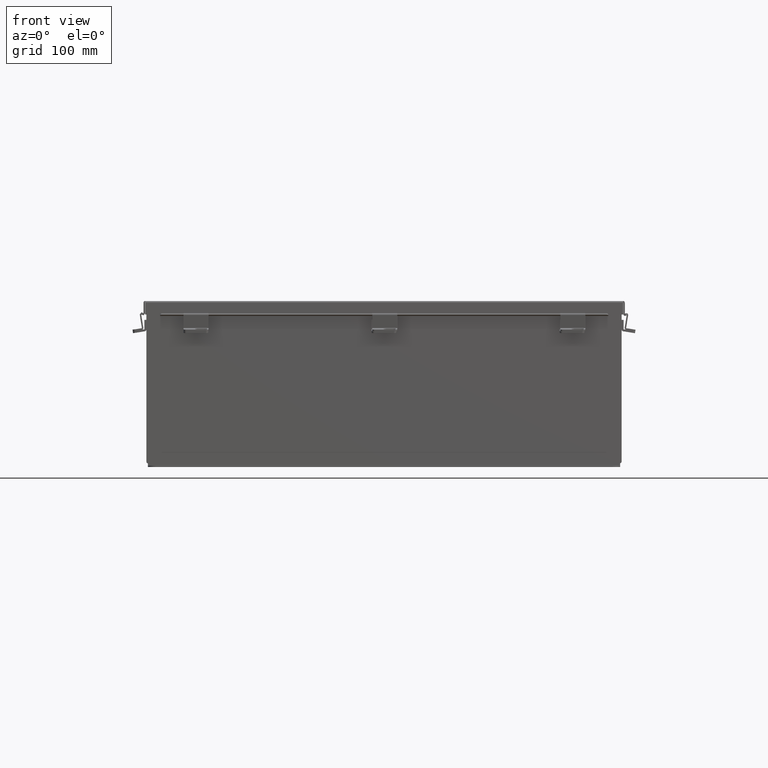
[diagram: clean part render]
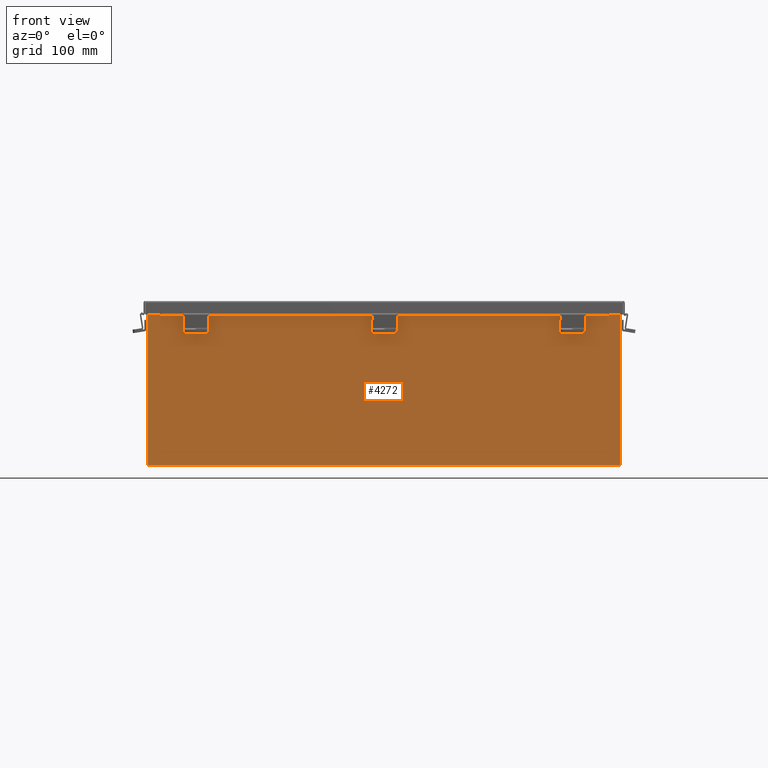
[diagram: same view with one face highlighted and labeled with its STEP entity id]
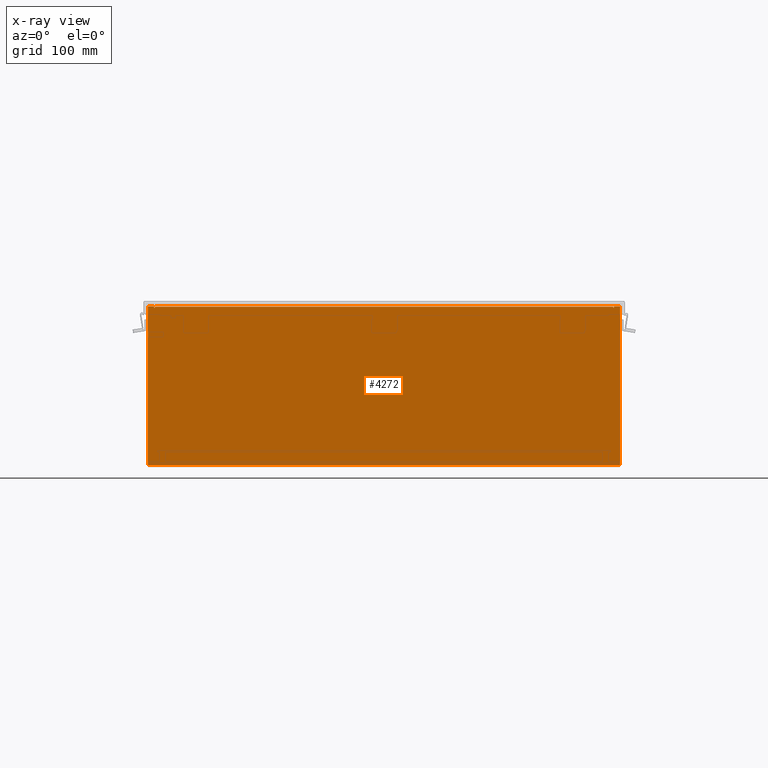
[diagram: x-ray of the same camera — body ghosted, the highlighted face saturated]
A machine part, front view. The second image highlights one B-rep face of the part: STEP entity #4272.
The next image is the same camera in x-ray: the body ghosted, the highlighted face saturated — about 0% of this face is hidden behind the body in this view.
In plain terms, the highlighted planar face has unit normal (-0, 1, -0).
Its self-contained STEP definition (entity closure, byte-faithful):
#26 = VERTEX_POINT ( 'NONE', #7369 ) ;
#90 = CARTESIAN_POINT ( 'NONE',  ( -11.92530000000001800, -1.748382715945128500E-014, 3.925299999999999100 ) ) ;
#274 = CARTESIAN_POINT ( 'NONE',  ( 11.92529999999998400, 0.0000000000000000000, 3.925300000000000500 ) ) ;
#307 = LINE ( 'NONE', #8028, #426 ) ;
#426 = VECTOR ( 'NONE', #4502, 39.37007874015748100 ) ;
#551 = CARTESIAN_POINT ( 'NONE',  ( -11.92530000000001800, -2.185478394931410600E-015, -4.099299999999995100 ) ) ;
#627 = VERTEX_POINT ( 'NONE', #3341 ) ;
#641 = CARTESIAN_POINT ( 'NONE',  ( 11.60097499999998000, 0.0000000000000000000, 3.874949999999997900 ) ) ;
#778 = VECTOR ( 'NONE', #2749, 39.37007874015748100 ) ;
#916 = EDGE_CURVE ( 'NONE', #6836, #2349, #9450, .T. ) ;
#1010 = AXIS2_PLACEMENT_3D ( 'NONE', #2888, #9377, #4308 ) ;
#1170 = EDGE_CURVE ( 'NONE', #2349, #3665, #6658, .T. ) ;
#1233 = ORIENTED_EDGE ( 'NONE', *, *, #8767, .F. ) ;
#1276 = AXIS2_PLACEMENT_3D ( 'NONE', #641, #8004, #3445 ) ;
#1324 = LINE ( 'NONE', #5909, #9157 ) ;
#1566 = CARTESIAN_POINT ( 'NONE',  ( -11.61965000000002000, -1.748382715945128500E-014, 3.925300000000000500 ) ) ;
#1594 = VECTOR ( 'NONE', #1884, 39.37007874015748100 ) ;
#1616 = CARTESIAN_POINT ( 'NONE',  ( -11.92530000000001800, -1.748382715945128500E-014, 3.925299999999999100 ) ) ;
#1803 = CARTESIAN_POINT ( 'NONE',  ( 11.92529999999998400, 1.748382715945128500E-014, -4.099299999999999500 ) ) ;
#1814 = ORIENTED_EDGE ( 'NONE', *, *, #9809, .T. ) ;
#1884 = DIRECTION ( 'NONE',  ( 1.000000000000000000, 8.208677865577687000E-017, -0.0000000000000000000 ) ) ;
#1937 = ORIENTED_EDGE ( 'NONE', *, *, #8825, .T. ) ;
#2321 = ORIENTED_EDGE ( 'NONE', *, *, #4082, .F. ) ;
#2349 = VERTEX_POINT ( 'NONE', #6168 ) ;
#2370 = DIRECTION ( 'NONE',  ( 1.000000000000000000, 4.910036603141682400E-031, 0.0000000000000000000 ) ) ;
#2461 = ORIENTED_EDGE ( 'NONE', *, *, #3631, .F. ) ;
#2535 = CARTESIAN_POINT ( 'NONE',  ( -11.92530000000001800, -1.748382715945128500E-014, 3.925299999999999100 ) ) ;
#2631 = LINE ( 'NONE', #551, #1594 ) ;
#2749 = DIRECTION ( 'NONE',  ( 0.0000000000000000000, 0.0000000000000000000, 1.000000000000000000 ) ) ;
#2755 = LINE ( 'NONE', #90, #4112 ) ;
#2857 = VERTEX_POINT ( 'NONE', #8580 ) ;
#2888 = CARTESIAN_POINT ( 'NONE',  ( -11.60097500000002000, -1.748382715945128500E-014, 3.874949999999997000 ) ) ;
#2892 = DIRECTION ( 'NONE',  ( 1.000000000000000000, 4.910036603141682400E-031, 0.0000000000000000000 ) ) ;
#2975 = VECTOR ( 'NONE', #8334, 39.37007874015748100 ) ;
#3205 = EDGE_CURVE ( 'NONE', #8410, #10077, #4004, .T. ) ;
#3341 = CARTESIAN_POINT ( 'NONE',  ( 11.61964999999998000, 0.0000000000000000000, 3.925299999999999100 ) ) ;
#3426 = ORIENTED_EDGE ( 'NONE', *, *, #6886, .T. ) ;
#3445 = DIRECTION ( 'NONE',  ( 0.0000000000000000000, 0.0000000000000000000, -1.000000000000000000 ) ) ;
#3448 = DIRECTION ( 'NONE',  ( 0.0000000000000000000, 0.0000000000000000000, -1.000000000000000000 ) ) ;
#3631 = EDGE_CURVE ( 'NONE', #2857, #5415, #5476, .T. ) ;
#3662 = CARTESIAN_POINT ( 'NONE',  ( 0.0000000000000000000, 0.0000000000000000000, 0.0000000000000000000 ) ) ;
#3665 = VERTEX_POINT ( 'NONE', #1566 ) ;
#3778 = ORIENTED_EDGE ( 'NONE', *, *, #4712, .F. ) ;
#4004 = LINE ( 'NONE', #9317, #5513 ) ;
#4023 = CARTESIAN_POINT ( 'NONE',  ( 11.58229999999998000, 0.0000000000000000000, 3.874949999999997900 ) ) ;
#4082 = EDGE_CURVE ( 'NONE', #6836, #10008, #2631, .T. ) ;
#4112 = VECTOR ( 'NONE', #2370, 39.37007874015748100 ) ;
#4272 = ADVANCED_FACE ( 'NONE', ( #8686 ), #5859, .F. ) ;
#4308 = DIRECTION ( 'NONE',  ( 0.0000000000000000000, 0.0000000000000000000, -1.000000000000000000 ) ) ;
#4345 = CARTESIAN_POINT ( 'NONE',  ( -11.61965000000002000, -1.748382715945128500E-014, 3.874949999999997000 ) ) ;
#4502 = DIRECTION ( 'NONE',  ( 0.0000000000000000000, 0.0000000000000000000, 1.000000000000000000 ) ) ;
#4620 = EDGE_CURVE ( 'NONE', #9532, #3665, #307, .T. ) ;
#4712 = EDGE_CURVE ( 'NONE', #627, #2857, #9059, .T. ) ;
#4823 = LINE ( 'NONE', #274, #6279 ) ;
#4960 = DIRECTION ( 'NONE',  ( 1.000000000000000000, 4.910036603141682400E-031, -0.0000000000000000000 ) ) ;
#5415 = VERTEX_POINT ( 'NONE', #4023 ) ;
#5476 = CIRCLE ( 'NONE', #1276, 0.01867499999999949400 ) ;
#5513 = VECTOR ( 'NONE', #6958, 39.37007874015748100 ) ;
#5539 = ORIENTED_EDGE ( 'NONE', *, *, #3205, .F. ) ;
#5623 = CARTESIAN_POINT ( 'NONE',  ( 11.58229999999998000, 0.0000000000000000000, 3.912299999999997000 ) ) ;
#5859 = PLANE ( 'NONE',  #7328 ) ;
#5909 = CARTESIAN_POINT ( 'NONE',  ( -11.58230000000002000, -1.092739197465705300E-014, 3.912299999999997900 ) ) ;
#5947 = EDGE_LOOP ( 'NONE', ( #6254, #8804, #5539, #1937, #1233, #2461, #3778, #1814, #3426, #2321, #9522, #8354 ) ) ;
#5953 = CARTESIAN_POINT ( 'NONE',  ( 11.61964999999981200, 0.0000000000000000000, -5.042991396304229400E-013 ) ) ;
#6120 = DIRECTION ( 'NONE',  ( -4.340572780399816900E-014, 0.0000000000000000000, -1.000000000000000000 ) ) ;
#6167 = LINE ( 'NONE', #7784, #2975 ) ;
#6168 = CARTESIAN_POINT ( 'NONE',  ( -11.92530000000001800, -1.748382715945128500E-014, 3.925299999999999100 ) ) ;
#6197 = VECTOR ( 'NONE', #2892, 39.37007874015748100 ) ;
#6254 = ORIENTED_EDGE ( 'NONE', *, *, #4620, .F. ) ;
#6279 = VECTOR ( 'NONE', #8307, 39.37007874015748100 ) ;
#6576 = VERTEX_POINT ( 'NONE', #5623 ) ;
#6594 = EDGE_CURVE ( 'NONE', #10077, #9532, #7875, .T. ) ;
#6658 = LINE ( 'NONE', #1616, #6197 ) ;
#6836 = VERTEX_POINT ( 'NONE', #8787 ) ;
#6886 = EDGE_CURVE ( 'NONE', #26, #10008, #4823, .T. ) ;
#6958 = DIRECTION ( 'NONE',  ( 0.0000000000000000000, 0.0000000000000000000, -1.000000000000000000 ) ) ;
#7328 = AXIS2_PLACEMENT_3D ( 'NONE', #3662, #7699, #3448 ) ;
#7336 = CARTESIAN_POINT ( 'NONE',  ( -11.58230000000002000, -1.748382715945128500E-014, 3.874949999999997000 ) ) ;
#7369 = CARTESIAN_POINT ( 'NONE',  ( 11.92529999999998400, 0.0000000000000000000, 3.925300000000000500 ) ) ;
#7699 = DIRECTION ( 'NONE',  ( -4.910036603141682400E-031, -1.000000000000000000, -0.0000000000000000000 ) ) ;
#7784 = CARTESIAN_POINT ( 'NONE',  ( 11.58229999999998000, 0.0000000000000000000, 0.0000000000000000000 ) ) ;
#7803 = CARTESIAN_POINT ( 'NONE',  ( -11.58230000000002000, -1.092739197465705300E-014, 3.912299999999997900 ) ) ;
#7875 = CIRCLE ( 'NONE', #1010, 0.01867499999999949400 ) ;
#8004 = DIRECTION ( 'NONE',  ( 4.910036603141682400E-031, 1.000000000000000000, -0.0000000000000000000 ) ) ;
#8028 = CARTESIAN_POINT ( 'NONE',  ( -11.61965000000002000, 0.0000000000000000000, 4.370956789862821100E-015 ) ) ;
#8307 = DIRECTION ( 'NONE',  ( 0.0000000000000000000, 0.0000000000000000000, -1.000000000000000000 ) ) ;
#8334 = DIRECTION ( 'NONE',  ( 0.0000000000000000000, 0.0000000000000000000, 1.000000000000000000 ) ) ;
#8354 = ORIENTED_EDGE ( 'NONE', *, *, #1170, .T. ) ;
#8410 = VERTEX_POINT ( 'NONE', #7803 ) ;
#8580 = CARTESIAN_POINT ( 'NONE',  ( 11.61964999999998000, 0.0000000000000000000, 3.874949999999997900 ) ) ;
#8686 = FACE_OUTER_BOUND ( 'NONE', #5947, .T. ) ;
#8767 = EDGE_CURVE ( 'NONE', #5415, #6576, #6167, .T. ) ;
#8787 = CARTESIAN_POINT ( 'NONE',  ( -11.92530000000001600, -2.185478394931410600E-015, -4.099299999999995100 ) ) ;
#8804 = ORIENTED_EDGE ( 'NONE', *, *, #6594, .F. ) ;
#8825 = EDGE_CURVE ( 'NONE', #8410, #6576, #1324, .T. ) ;
#9059 = LINE ( 'NONE', #5953, #9438 ) ;
#9157 = VECTOR ( 'NONE', #4960, 39.37007874015748100 ) ;
#9317 = CARTESIAN_POINT ( 'NONE',  ( -11.58230000000002000, 0.0000000000000000000, 4.370956789862821100E-015 ) ) ;
#9377 = DIRECTION ( 'NONE',  ( 4.910036603141682400E-031, 1.000000000000000000, -0.0000000000000000000 ) ) ;
#9438 = VECTOR ( 'NONE', #6120, 39.37007874015748100 ) ;
#9450 = LINE ( 'NONE', #2535, #778 ) ;
#9522 = ORIENTED_EDGE ( 'NONE', *, *, #916, .T. ) ;
#9532 = VERTEX_POINT ( 'NONE', #4345 ) ;
#9809 = EDGE_CURVE ( 'NONE', #627, #26, #2755, .T. ) ;
#10008 = VERTEX_POINT ( 'NONE', #1803 ) ;
#10077 = VERTEX_POINT ( 'NONE', #7336 ) ;